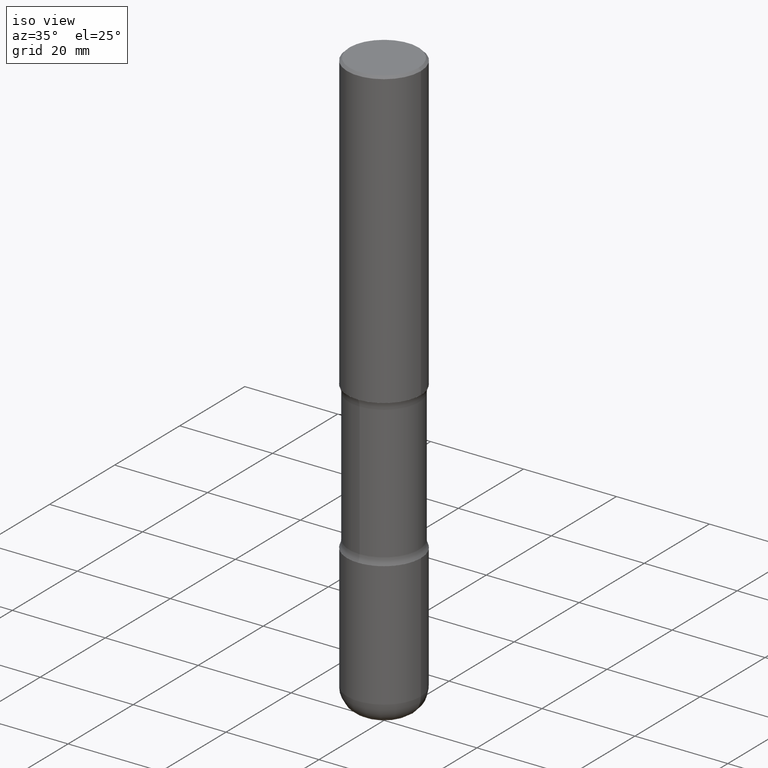
[diagram: clean part render]
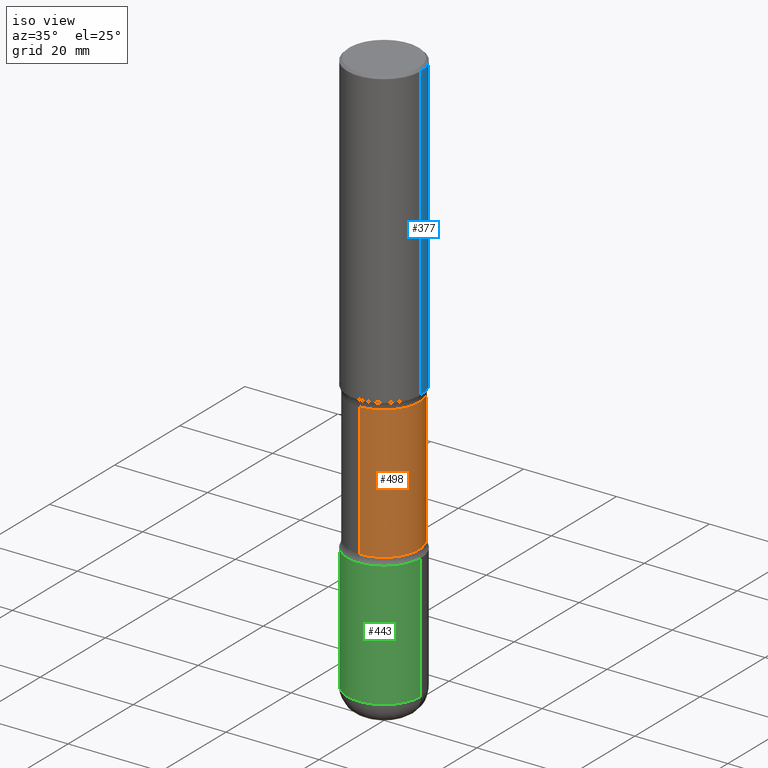
[diagram: same view with three faces highlighted in distinct colors, each labeled with its STEP entity id]
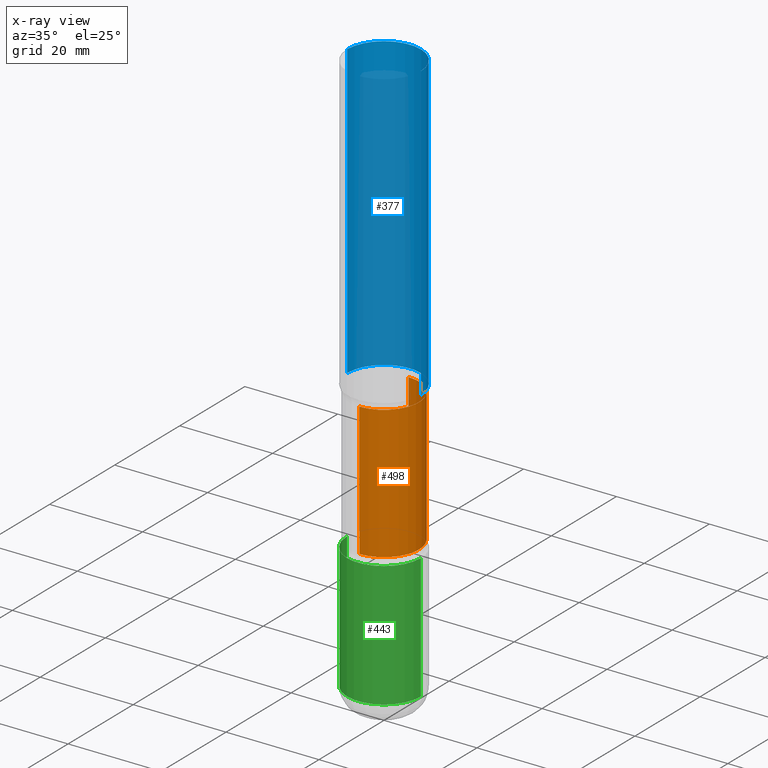
[diagram: x-ray of the same camera — body ghosted, the three highlighted faces saturated]
A machine part, iso view with three faces highlighted in distinct colors.
The next image is the same camera in x-ray (body ghosted, the three faces saturated) — at least one of them is partly hidden behind the body in this view.
Their STEP definitions:

[orange] entity #498 — the highlighted cylindrical surface (partial cylindrical patch) has radius 7.5406 mm, axis along (0, -0, -1).
#33 = DIRECTION ( 'NONE',  ( 2.521457479434076939E-29, -3.382661233743975076E-15, -1.000000000000000000 ) ) ;
#69 = VERTEX_POINT ( 'NONE', #527 ) ;
#76 = CYLINDRICAL_SURFACE ( 'NONE', #501, 0.2968750000000000000 ) ;
#80 = ORIENTED_EDGE ( 'NONE', *, *, #211, .F. ) ;
#90 = CARTESIAN_POINT ( 'NONE',  ( 2.073067044938233492E-15, 0.2968749999999827360, -5.000000000000000888 ) ) ;
#93 = CARTESIAN_POINT ( 'NONE',  ( -2.090307983695922804E-15, -0.2968750000000128786, -3.689484635215507069 ) ) ;
#107 = VERTEX_POINT ( 'NONE', #93 ) ;
#123 = CARTESIAN_POINT ( 'NONE',  ( 1.232232987248685960E-28, -1.732138156284176685E-14, -5.000000000000000000 ) ) ;
#143 = CARTESIAN_POINT ( 'NONE',  ( 2.073067044938200360E-15, 0.2968749999999871214, -3.689484635215509289 ) ) ;
#146 = CARTESIAN_POINT ( 'NONE',  ( 9.017921104037724021E-29, -1.288835204215942242E-14, -3.689484635215508401 ) ) ;
#167 = DIRECTION ( 'NONE',  ( 2.521457479434076939E-29, -3.382661233743975076E-15, -1.000000000000000000 ) ) ;
#201 = ORIENTED_EDGE ( 'NONE', *, *, #513, .T. ) ;
#202 = DIRECTION ( 'NONE',  ( 6.982962677686266711E-15, 1.000000000000000000, -3.680805717779217644E-15 ) ) ;
#211 = EDGE_CURVE ( 'NONE', #290, #107, #376, .T. ) ;
#225 = AXIS2_PLACEMENT_3D ( 'NONE', #247, #33, #202 ) ;
#234 = VECTOR ( 'NONE', #309, 39.37007874015748143 ) ;
#247 = CARTESIAN_POINT ( 'NONE',  ( 6.171273093058203090E-29, -9.069431456984199816E-15, -2.560515364784490711 ) ) ;
#250 = EDGE_CURVE ( 'NONE', #69, #290, #400, .T. ) ;
#254 = DIRECTION ( 'NONE',  ( 6.982962677686266711E-15, 1.000000000000000000, -3.680805717779217644E-15 ) ) ;
#264 = DIRECTION ( 'NONE',  ( 2.521457479434076939E-29, -3.382661233743975076E-15, -1.000000000000000000 ) ) ;
#289 = EDGE_CURVE ( 'NONE', #426, #107, #354, .T. ) ;
#290 = VERTEX_POINT ( 'NONE', #143 ) ;
#309 = DIRECTION ( 'NONE',  ( 2.521457479434076939E-29, -3.382661233743974681E-15, -1.000000000000000000 ) ) ;
#340 = ORIENTED_EDGE ( 'NONE', *, *, #250, .F. ) ;
#354 = LINE ( 'NONE', #414, #436 ) ;
#364 = DIRECTION ( 'NONE',  ( 6.982962677686265133E-15, 1.000000000000000000, -3.680805717779217644E-15 ) ) ;
#376 = CIRCLE ( 'NONE', #482, 0.2968750000000000000 ) ;
#400 = LINE ( 'NONE', #90, #234 ) ;
#413 = EDGE_LOOP ( 'NONE', ( #201, #416, #80, #340 ) ) ;
#414 = CARTESIAN_POINT ( 'NONE',  ( -2.036710343088299976E-15, -0.2968750000000173195, -4.999999999999999112 ) ) ;
#416 = ORIENTED_EDGE ( 'NONE', *, *, #289, .T. ) ;
#426 = VERTEX_POINT ( 'NONE', #524 ) ;
#436 = VECTOR ( 'NONE', #537, 39.37007874015748143 ) ;
#482 = AXIS2_PLACEMENT_3D ( 'NONE', #146, #264, #364 ) ;
#498 = ADVANCED_FACE ( 'NONE', ( #558 ), #76, .T. ) ;
#501 = AXIS2_PLACEMENT_3D ( 'NONE', #123, #167, #254 ) ;
#513 = EDGE_CURVE ( 'NONE', #69, #426, #532, .T. ) ;
#524 = CARTESIAN_POINT ( 'NONE',  ( -2.090307983695953569E-15, -0.2968750000000091038, -2.560515364784489822 ) ) ;
#527 = CARTESIAN_POINT ( 'NONE',  ( 2.073067044938171961E-15, 0.2968749999999909517, -2.560515364784492043 ) ) ;
#532 = CIRCLE ( 'NONE', #225, 0.2968750000000000000 ) ;
#537 = DIRECTION ( 'NONE',  ( 2.521457479434076939E-29, -3.382661233743974681E-15, -1.000000000000000000 ) ) ;
#558 = FACE_OUTER_BOUND ( 'NONE', #413, .T. ) ;

[blue] entity #377 — the highlighted cylindrical surface (partial cylindrical patch) has radius 7.9375 mm, axis along (-0, 0, 1).
#2 = EDGE_LOOP ( 'NONE', ( #324, #459, #457, #39 ) ) ;
#19 = DIRECTION ( 'NONE',  ( 1.000000000000000000, -6.982962677686266711E-15, 0.000000000000000000 ) ) ;
#25 = DIRECTION ( 'NONE',  ( -2.445468806185136597E-29, 3.491481338843145583E-15, 1.000000000000000000 ) ) ;
#29 = VERTEX_POINT ( 'NONE', #477 ) ;
#39 = ORIENTED_EDGE ( 'NONE', *, *, #434, .F. ) ;
#64 = CARTESIAN_POINT ( 'NONE',  ( 4.890937612370289799E-31, -6.982962677686315028E-17, -0.02000000000000006981 ) ) ;
#85 = CARTESIAN_POINT ( 'NONE',  ( -0.3125000000000000000, 2.220446049250313081E-15, -1.537167215704658232E-29 ) ) ;
#86 = DIRECTION ( 'NONE',  ( -2.445468806185136877E-29, 3.491481338843145188E-15, 1.000000000000000000 ) ) ;
#101 = AXIS2_PLACEMENT_3D ( 'NONE', #106, #127, #432 ) ;
#103 = VECTOR ( 'NONE', #489, 39.37007874015748143 ) ;
#106 = CARTESIAN_POINT ( 'NONE',  ( 0.000000000000000000, 0.000000000000000000, 0.000000000000000000 ) ) ;
#108 = CIRCLE ( 'NONE', #292, 0.3124999999999998890 ) ;
#125 = LINE ( 'NONE', #85, #103 ) ;
#127 = DIRECTION ( 'NONE',  ( -2.445468806185136597E-29, 3.491481338843145583E-15, 1.000000000000000000 ) ) ;
#157 = CARTESIAN_POINT ( 'NONE',  ( 0.3124999999999998890, -2.213735251080466123E-15, -0.02000000000000006981 ) ) ;
#168 = EDGE_CURVE ( 'NONE', #508, #542, #125, .T. ) ;
#187 = CIRCLE ( 'NONE', #512, 0.3125000000000002220 ) ;
#206 = CARTESIAN_POINT ( 'NONE',  ( -0.3124999999999998890, 2.112346210000094260E-15, -0.02000000000000006981 ) ) ;
#292 = AXIS2_PLACEMENT_3D ( 'NONE', #64, #25, #509 ) ;
#321 = EDGE_CURVE ( 'NONE', #29, #508, #187, .T. ) ;
#323 = CYLINDRICAL_SURFACE ( 'NONE', #101, 0.3125000000000000000 ) ;
#324 = ORIENTED_EDGE ( 'NONE', *, *, #321, .T. ) ;
#338 = EDGE_CURVE ( 'NONE', #455, #542, #108, .T. ) ;
#372 = FACE_OUTER_BOUND ( 'NONE', #2, .T. ) ;
#377 = ADVANCED_FACE ( 'NONE', ( #372 ), #323, .T. ) ;
#392 = CARTESIAN_POINT ( 'NONE',  ( 0.3125000000000000000, -2.182175836776958347E-15, 1.523805242436230075E-29 ) ) ;
#412 = CARTESIAN_POINT ( 'NONE',  ( 6.113672015462840371E-29, -8.728703347107863365E-15, -2.499999999999999556 ) ) ;
#429 = VECTOR ( 'NONE', #86, 39.37007874015748143 ) ;
#430 = LINE ( 'NONE', #392, #429 ) ;
#432 = DIRECTION ( 'NONE',  ( 1.000000000000000000, -6.982962677686266711E-15, 4.876176775795936353E-29 ) ) ;
#434 = EDGE_CURVE ( 'NONE', #29, #455, #430, .T. ) ;
#442 = DIRECTION ( 'NONE',  ( -2.445468806185136597E-29, 3.491481338843145583E-15, 1.000000000000000000 ) ) ;
#455 = VERTEX_POINT ( 'NONE', #157 ) ;
#457 = ORIENTED_EDGE ( 'NONE', *, *, #338, .F. ) ;
#459 = ORIENTED_EDGE ( 'NONE', *, *, #168, .T. ) ;
#477 = CARTESIAN_POINT ( 'NONE',  ( 0.3125000000000002220, -1.091087918388482329E-14, -2.499999999999999556 ) ) ;
#489 = DIRECTION ( 'NONE',  ( -2.445468806185136877E-29, 3.491481338843145188E-15, 1.000000000000000000 ) ) ;
#508 = VERTEX_POINT ( 'NONE', #515 ) ;
#509 = DIRECTION ( 'NONE',  ( 1.000000000000000000, -6.982962677686266711E-15, 0.000000000000000000 ) ) ;
#512 = AXIS2_PLACEMENT_3D ( 'NONE', #412, #442, #19 ) ;
#515 = CARTESIAN_POINT ( 'NONE',  ( -0.3125000000000002220, -2.178820437692046306E-15, -2.499999999999999556 ) ) ;
#542 = VERTEX_POINT ( 'NONE', #206 ) ;

[green] entity #443 — the highlighted cylindrical surface (partial cylindrical patch) has radius 7.9375 mm, axis along (-0, 0, 1).
#13 = DIRECTION ( 'NONE',  ( -2.445468806185136877E-29, 3.491481338843145188E-15, 1.000000000000000000 ) ) ;
#30 = DIRECTION ( 'NONE',  ( -2.445468806185136877E-29, 3.491481338843145188E-15, 1.000000000000000000 ) ) ;
#41 = CYLINDRICAL_SURFACE ( 'NONE', #492, 0.3125000000000001665 ) ;
#100 = CARTESIAN_POINT ( 'NONE',  ( -0.3125000000000001665, 2.220446049250314264E-15, -1.537167215704658792E-29 ) ) ;
#114 = DIRECTION ( 'NONE',  ( -2.445468806185136597E-29, 3.491481338843145583E-15, 1.000000000000000000 ) ) ;
#119 = FACE_OUTER_BOUND ( 'NONE', #544, .T. ) ;
#137 = CIRCLE ( 'NONE', #242, 0.3125000000000001665 ) ;
#148 = ORIENTED_EDGE ( 'NONE', *, *, #452, .F. ) ;
#159 = DIRECTION ( 'NONE',  ( 1.000000000000000000, -6.982962677686264344E-15, 0.000000000000000000 ) ) ;
#181 = VECTOR ( 'NONE', #30, 39.37007874015748143 ) ;
#210 = CARTESIAN_POINT ( 'NONE',  ( -0.3125000000000001665, -1.457357919058521389E-14, -4.810000000000000497 ) ) ;
#232 = CARTESIAN_POINT ( 'NONE',  ( 0.3125000000000001665, -1.527523085743875418E-14, -3.749999999999999556 ) ) ;
#238 = ORIENTED_EDGE ( 'NONE', *, *, #419, .T. ) ;
#242 = AXIS2_PLACEMENT_3D ( 'NONE', #552, #114, #291 ) ;
#243 = VERTEX_POINT ( 'NONE', #488 ) ;
#257 = DIRECTION ( 'NONE',  ( -2.445468806185136597E-29, 3.491481338843145583E-15, 1.000000000000000000 ) ) ;
#278 = CARTESIAN_POINT ( 'NONE',  ( 0.3125000000000001665, -1.897620107661249005E-14, -4.810000000000000497 ) ) ;
#286 = LINE ( 'NONE', #288, #181 ) ;
#288 = CARTESIAN_POINT ( 'NONE',  ( 0.3125000000000001665, -2.182175836776959530E-15, 1.523805242436230636E-29 ) ) ;
#291 = DIRECTION ( 'NONE',  ( 1.000000000000000000, -6.982962677686265133E-15, 0.000000000000000000 ) ) ;
#295 = VECTOR ( 'NONE', #13, 39.37007874015748143 ) ;
#308 = LINE ( 'NONE', #100, #295 ) ;
#322 = VERTEX_POINT ( 'NONE', #232 ) ;
#374 = VERTEX_POINT ( 'NONE', #278 ) ;
#381 = DIRECTION ( 'NONE',  ( 1.000000000000000000, -6.982962677686266711E-15, 4.876176775795935232E-29 ) ) ;
#389 = ORIENTED_EDGE ( 'NONE', *, *, #519, .T. ) ;
#419 = EDGE_CURVE ( 'NONE', #374, #322, #286, .T. ) ;
#431 = ORIENTED_EDGE ( 'NONE', *, *, #545, .F. ) ;
#443 = ADVANCED_FACE ( 'NONE', ( #119 ), #41, .T. ) ;
#452 = EDGE_CURVE ( 'NONE', #243, #322, #137, .T. ) ;
#461 = AXIS2_PLACEMENT_3D ( 'NONE', #517, #555, #159 ) ;
#467 = VERTEX_POINT ( 'NONE', #210 ) ;
#468 = CARTESIAN_POINT ( 'NONE',  ( 0.000000000000000000, 0.000000000000000000, 0.000000000000000000 ) ) ;
#488 = CARTESIAN_POINT ( 'NONE',  ( -0.3125000000000001665, -1.272309408099834754E-14, -3.749999999999999556 ) ) ;
#492 = AXIS2_PLACEMENT_3D ( 'NONE', #468, #257, #381 ) ;
#517 = CARTESIAN_POINT ( 'NONE',  ( 1.176270495775050811E-28, -1.679402523983553013E-14, -4.810000000000000497 ) ) ;
#519 = EDGE_CURVE ( 'NONE', #467, #374, #546, .T. ) ;
#544 = EDGE_LOOP ( 'NONE', ( #431, #389, #238, #148 ) ) ;
#545 = EDGE_CURVE ( 'NONE', #467, #243, #308, .T. ) ;
#546 = CIRCLE ( 'NONE', #461, 0.3125000000000002220 ) ;
#552 = CARTESIAN_POINT ( 'NONE',  ( 9.170508023194261117E-29, -1.309305502066179584E-14, -3.749999999999999556 ) ) ;
#555 = DIRECTION ( 'NONE',  ( -2.445468806185136597E-29, 3.491481338843145583E-15, 1.000000000000000000 ) ) ;